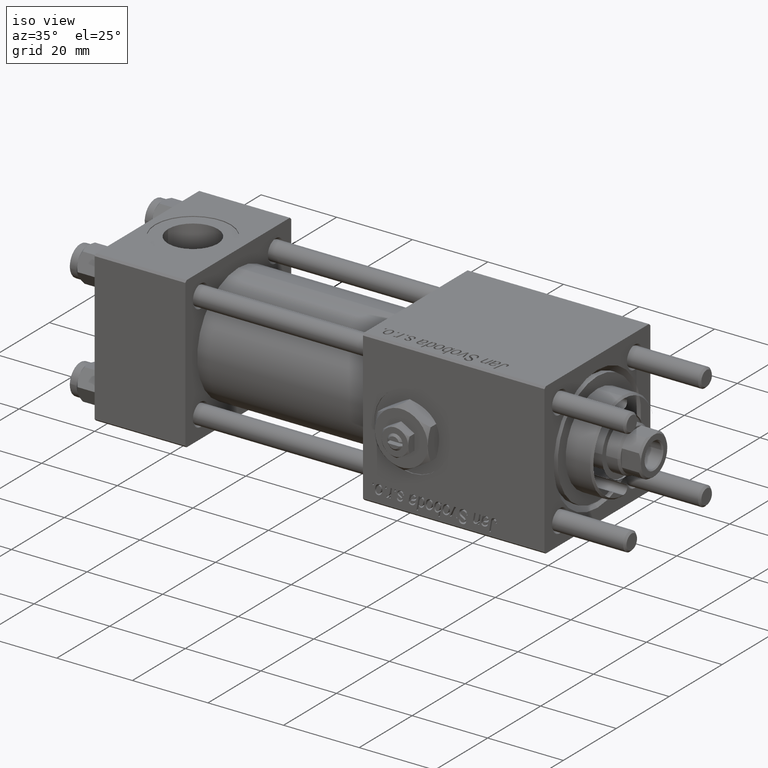
[diagram: clean part render]
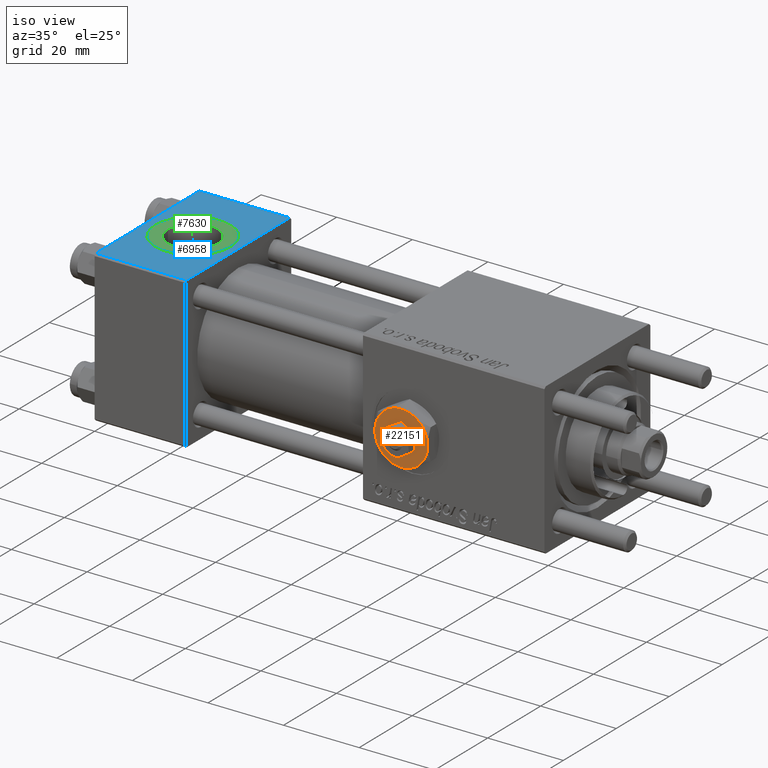
[diagram: same view with three faces highlighted in distinct colors, each labeled with its STEP entity id]
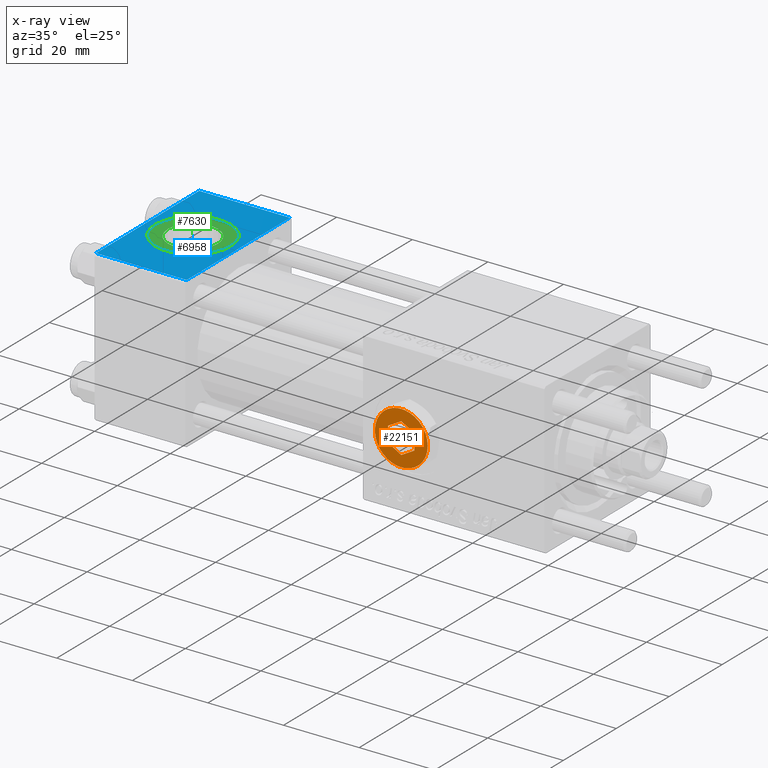
[diagram: x-ray of the same camera — body ghosted, the three highlighted faces saturated]
A machine part, iso view with three faces highlighted in distinct colors.
The next image is the same camera in x-ray (body ghosted, the three faces saturated) — at least one of them is partly hidden behind the body in this view.
Their STEP definitions:

[orange] entity #22151 — the highlighted planar face has unit normal (0, -1, -0).
#766 = EDGE_CURVE ( 'NONE', #21159, #26803, #58246, .T. ) ;
#2853 = AXIS2_PLACEMENT_3D ( 'NONE', #6384, #24747, #42833 ) ;
#2969 = DIRECTION ( 'NONE',  ( 0.000000000000000000, 0.000000000000000000, 1.000000000000000000 ) ) ;
#3451 = VERTEX_POINT ( 'NONE', #27362 ) ;
#4093 = AXIS2_PLACEMENT_3D ( 'NONE', #43582, #2969, #21047 ) ;
#4804 = DIRECTION ( 'NONE',  ( 0.000000000000000000, 0.000000000000000000, 1.000000000000000000 ) ) ;
#5532 = DIRECTION ( 'NONE',  ( -3.219245568722483357E-16, 1.000000000000000000, 0.000000000000000000 ) ) ;
#6185 = AXIS2_PLACEMENT_3D ( 'NONE', #47670, #38770, #42924 ) ;
#6325 = ORIENTED_EDGE ( 'NONE', *, *, #55294, .F. ) ;
#6334 = VECTOR ( 'NONE', #6650, 1000.000000000000114 ) ;
#6384 = CARTESIAN_POINT ( 'NONE',  ( 0.000000000000000000, 0.000000000000000000, 4.299999999999999822 ) ) ;
#6650 = DIRECTION ( 'NONE',  ( 0.8660254037844388186, 0.4999999999999996669, 0.000000000000000000 ) ) ;
#7170 = DIRECTION ( 'NONE',  ( 1.000000000000000000, 0.000000000000000000, 0.000000000000000000 ) ) ;
#9351 = VERTEX_POINT ( 'NONE', #58067 ) ;
#9981 = LINE ( 'NONE', #28060, #11613 ) ;
#10314 = EDGE_CURVE ( 'NONE', #49031, #38662, #26712, .T. ) ;
#10663 = PLANE ( 'NONE',  #56759 ) ;
#10997 = EDGE_CURVE ( 'NONE', #12387, #15338, #11982, .T. ) ;
#11613 = VECTOR ( 'NONE', #5532, 1000.000000000000000 ) ;
#11982 = LINE ( 'NONE', #38089, #6334 ) ;
#12133 = ORIENTED_EDGE ( 'NONE', *, *, #25479, .T. ) ;
#12387 = VERTEX_POINT ( 'NONE', #46239 ) ;
#13526 = CARTESIAN_POINT ( 'NONE',  ( 3.500000000000000444, 6.062177826491073063, 4.299999999999999822 ) ) ;
#13588 = CARTESIAN_POINT ( 'NONE',  ( -3.499999999999999112, 2.020725942163690725, 4.299999999999999822 ) ) ;
#15338 = VERTEX_POINT ( 'NONE', #31696 ) ;
#15402 = CARTESIAN_POINT ( 'NONE',  ( -3.500000000000000888, 6.062177826491073063, 4.299999999999999822 ) ) ;
#16216 = ORIENTED_EDGE ( 'NONE', *, *, #41795, .T. ) ;
#16652 = ORIENTED_EDGE ( 'NONE', *, *, #22839, .F. ) ;
#16936 = ORIENTED_EDGE ( 'NONE', *, *, #10997, .F. ) ;
#17998 = CIRCLE ( 'NONE', #51121, 7.000000000000001776 ) ;
#18026 = CARTESIAN_POINT ( 'NONE',  ( 0.000000000000000000, 0.000000000000000000, 4.299999999999999822 ) ) ;
#19728 = CARTESIAN_POINT ( 'NONE',  ( 6.999999999999994671, 3.004629197474313724E-15, 4.299999999999999822 ) ) ;
#19748 = AXIS2_PLACEMENT_3D ( 'NONE', #40976, #4804, #55196 ) ;
#20059 = EDGE_CURVE ( 'NONE', #45292, #58417, #52879, .T. ) ;
#20458 = EDGE_CURVE ( 'NONE', #3451, #38843, #40265, .T. ) ;
#21011 = AXIS2_PLACEMENT_3D ( 'NONE', #18026, #39958, #35514 ) ;
#21047 = DIRECTION ( 'NONE',  ( 1.000000000000000000, 0.000000000000000000, 0.000000000000000000 ) ) ;
#21159 = VERTEX_POINT ( 'NONE', #15402 ) ;
#22151 = ADVANCED_FACE ( 'NONE', ( #29315, #47409 ), #10663, .T. ) ;
#22468 = DIRECTION ( 'NONE',  ( 1.073081856240828196E-16, -1.000000000000000000, 0.000000000000000000 ) ) ;
#22839 = EDGE_CURVE ( 'NONE', #38843, #12387, #53477, .T. ) ;
#23878 = CARTESIAN_POINT ( 'NONE',  ( -7.000000000000001776, -2.253471898105739040E-15, 4.299999999999999822 ) ) ;
#24747 = DIRECTION ( 'NONE',  ( 0.000000000000000000, 0.000000000000000000, 1.000000000000000000 ) ) ;
#25479 = EDGE_CURVE ( 'NONE', #26803, #9351, #28423, .T. ) ;
#26712 = LINE ( 'NONE', #39182, #38539 ) ;
#26803 = VERTEX_POINT ( 'NONE', #23878 ) ;
#27362 = CARTESIAN_POINT ( 'NONE',  ( -3.499999999999999112, 2.020725942163690725, 4.299999999999999822 ) ) ;
#27375 = EDGE_CURVE ( 'NONE', #38662, #3451, #35637, .T. ) ;
#28060 = CARTESIAN_POINT ( 'NONE',  ( 3.499999999999999556, -2.020725942163690281, 4.299999999999999822 ) ) ;
#28423 = CIRCLE ( 'NONE', #2853, 7.000000000000001776 ) ;
#29315 = FACE_OUTER_BOUND ( 'NONE', #30865, .T. ) ;
#29697 = CARTESIAN_POINT ( 'NONE',  ( 0.000000000000000000, 0.000000000000000000, 4.299999999999999822 ) ) ;
#30865 = EDGE_LOOP ( 'NONE', ( #47056, #16216, #46959, #55118, #12133, #42029 ) ) ;
#31696 = CARTESIAN_POINT ( 'NONE',  ( 3.500000000000000000, -2.020725942163690281, 4.299999999999999822 ) ) ;
#31727 = ORIENTED_EDGE ( 'NONE', *, *, #10314, .F. ) ;
#32102 = VECTOR ( 'NONE', #22468, 1000.000000000000000 ) ;
#32618 = CARTESIAN_POINT ( 'NONE',  ( 3.499999999999998224, 2.020725942163691613, 4.299999999999999822 ) ) ;
#34720 = DIRECTION ( 'NONE',  ( -0.8660254037844387076, 0.4999999999999998335, 0.000000000000000000 ) ) ;
#34798 = DIRECTION ( 'NONE',  ( 0.8660254037844385966, -0.4999999999999998890, 0.000000000000000000 ) ) ;
#35514 = DIRECTION ( 'NONE',  ( 1.000000000000000000, 0.000000000000000000, 0.000000000000000000 ) ) ;
#35637 = LINE ( 'NONE', #39194, #57874 ) ;
#35932 = VECTOR ( 'NONE', #34798, 1000.000000000000227 ) ;
#36616 = EDGE_CURVE ( 'NONE', #9351, #45292, #51396, .T. ) ;
#38089 = CARTESIAN_POINT ( 'NONE',  ( -2.443687887572056883E-16, -4.041451884327378785, 4.299999999999999822 ) ) ;
#38539 = VECTOR ( 'NONE', #34720, 1000.000000000000114 ) ;
#38662 = VERTEX_POINT ( 'NONE', #44195 ) ;
#38770 = DIRECTION ( 'NONE',  ( 0.000000000000000000, 0.000000000000000000, 1.000000000000000000 ) ) ;
#38805 = DIRECTION ( 'NONE',  ( 1.000000000000000000, 0.000000000000000000, -0.000000000000000000 ) ) ;
#38843 = VERTEX_POINT ( 'NONE', #40927 ) ;
#38995 = CARTESIAN_POINT ( 'NONE',  ( 3.500000000000000888, -6.062177826491073951, 4.299999999999999822 ) ) ;
#39182 = CARTESIAN_POINT ( 'NONE',  ( 3.499999999999998224, 2.020725942163691613, 4.299999999999999822 ) ) ;
#39194 = CARTESIAN_POINT ( 'NONE',  ( 0.000000000000000000, 4.041451884327380562, 4.299999999999999822 ) ) ;
#39958 = DIRECTION ( 'NONE',  ( 0.000000000000000000, 0.000000000000000000, 1.000000000000000000 ) ) ;
#40208 = VERTEX_POINT ( 'NONE', #13526 ) ;
#40265 = LINE ( 'NONE', #13588, #32102 ) ;
#40927 = CARTESIAN_POINT ( 'NONE',  ( -3.499999999999998668, -2.020725942163689837, 4.299999999999999822 ) ) ;
#40976 = CARTESIAN_POINT ( 'NONE',  ( 0.000000000000000000, 0.000000000000000000, 4.299999999999999822 ) ) ;
#41795 = EDGE_CURVE ( 'NONE', #58417, #40208, #17998, .T. ) ;
#42029 = ORIENTED_EDGE ( 'NONE', *, *, #36616, .T. ) ;
#42260 = EDGE_LOOP ( 'NONE', ( #43544, #31727, #6325, #16936, #16652, #57149 ) ) ;
#42833 = DIRECTION ( 'NONE',  ( 1.000000000000000000, 0.000000000000000000, 0.000000000000000000 ) ) ;
#42924 = DIRECTION ( 'NONE',  ( 1.000000000000000000, 0.000000000000000000, 0.000000000000000000 ) ) ;
#43544 = ORIENTED_EDGE ( 'NONE', *, *, #27375, .F. ) ;
#43582 = CARTESIAN_POINT ( 'NONE',  ( 0.000000000000000000, 0.000000000000000000, 4.299999999999999822 ) ) ;
#43935 = DIRECTION ( 'NONE',  ( -0.8660254037844385966, -0.4999999999999998890, 0.000000000000000000 ) ) ;
#44195 = CARTESIAN_POINT ( 'NONE',  ( 0.000000000000000000, 4.041451884327380562, 4.299999999999999822 ) ) ;
#45292 = VERTEX_POINT ( 'NONE', #38995 ) ;
#46239 = CARTESIAN_POINT ( 'NONE',  ( -2.443687887572056883E-16, -4.041451884327378785, 4.299999999999999822 ) ) ;
#46555 = CARTESIAN_POINT ( 'NONE',  ( 0.000000000000000000, 0.000000000000000000, 4.299999999999999822 ) ) ;
#46603 = CIRCLE ( 'NONE', #21011, 7.000000000000001776 ) ;
#46959 = ORIENTED_EDGE ( 'NONE', *, *, #47657, .T. ) ;
#47056 = ORIENTED_EDGE ( 'NONE', *, *, #20059, .T. ) ;
#47409 = FACE_BOUND ( 'NONE', #42260, .T. ) ;
#47657 = EDGE_CURVE ( 'NONE', #40208, #21159, #46603, .T. ) ;
#47670 = CARTESIAN_POINT ( 'NONE',  ( 0.000000000000000000, 0.000000000000000000, 4.299999999999999822 ) ) ;
#47789 = DIRECTION ( 'NONE',  ( 0.000000000000000000, 0.000000000000000000, 1.000000000000000000 ) ) ;
#49031 = VERTEX_POINT ( 'NONE', #32618 ) ;
#51121 = AXIS2_PLACEMENT_3D ( 'NONE', #29697, #47789, #7170 ) ;
#51396 = CIRCLE ( 'NONE', #4093, 7.000000000000001776 ) ;
#52879 = CIRCLE ( 'NONE', #19748, 7.000000000000001776 ) ;
#53477 = LINE ( 'NONE', #57623, #35932 ) ;
#55118 = ORIENTED_EDGE ( 'NONE', *, *, #766, .T. ) ;
#55196 = DIRECTION ( 'NONE',  ( 1.000000000000000000, 0.000000000000000000, 0.000000000000000000 ) ) ;
#55294 = EDGE_CURVE ( 'NONE', #15338, #49031, #9981, .T. ) ;
#56585 = DIRECTION ( 'NONE',  ( 0.000000000000000000, 0.000000000000000000, 1.000000000000000000 ) ) ;
#56759 = AXIS2_PLACEMENT_3D ( 'NONE', #46555, #56585, #38805 ) ;
#57149 = ORIENTED_EDGE ( 'NONE', *, *, #20458, .F. ) ;
#57623 = CARTESIAN_POINT ( 'NONE',  ( -3.499999999999998668, -2.020725942163689837, 4.299999999999999822 ) ) ;
#57874 = VECTOR ( 'NONE', #43935, 1000.000000000000227 ) ;
#58067 = CARTESIAN_POINT ( 'NONE',  ( -3.500000000000000000, -6.062177826491073063, 4.299999999999999822 ) ) ;
#58246 = CIRCLE ( 'NONE', #6185, 7.000000000000001776 ) ;
#58417 = VERTEX_POINT ( 'NONE', #19728 ) ;

[blue] entity #6958 — the highlighted planar face has unit normal (0, 0, -1).
#191 = ORIENTED_EDGE ( 'NONE', *, *, #43503, .F. ) ;
#1709 = VERTEX_POINT ( 'NONE', #34919 ) ;
#1809 = PLANE ( 'NONE',  #51664 ) ;
#2453 = VERTEX_POINT ( 'NONE', #57828 ) ;
#3153 = LINE ( 'NONE', #31592, #26601 ) ;
#4408 = CIRCLE ( 'NONE', #17663, 9.999999999999998224 ) ;
#5975 = DIRECTION ( 'NONE',  ( 0.000000000000000000, 2.602085213965210149E-16, -1.000000000000000000 ) ) ;
#6552 = ORIENTED_EDGE ( 'NONE', *, *, #56882, .T. ) ;
#6797 = CARTESIAN_POINT ( 'NONE',  ( 24.00000000000000000, -19.49999999999999289, 19.99999999999998934 ) ) ;
#6958 = ADVANCED_FACE ( 'NONE', ( #51046, #46600 ), #1809, .F. ) ;
#7367 = EDGE_CURVE ( 'NONE', #2453, #32653, #49151, .T. ) ;
#7674 = DIRECTION ( 'NONE',  ( 1.000000000000000000, 0.000000000000000000, 0.000000000000000000 ) ) ;
#8435 = ORIENTED_EDGE ( 'NONE', *, *, #9909, .F. ) ;
#8443 = DIRECTION ( 'NONE',  ( 0.000000000000000000, -1.000000000000000000, -2.602085213965210149E-16 ) ) ;
#9909 = EDGE_CURVE ( 'NONE', #14653, #14226, #4408, .T. ) ;
#11364 = EDGE_CURVE ( 'NONE', #14226, #14653, #20584, .T. ) ;
#11399 = VECTOR ( 'NONE', #8443, 1000.000000000000000 ) ;
#12868 = CARTESIAN_POINT ( 'NONE',  ( 0.000000000000000000, -19.49999999999999289, 19.99999999999998934 ) ) ;
#14226 = VERTEX_POINT ( 'NONE', #40119 ) ;
#14653 = VERTEX_POINT ( 'NONE', #58313 ) ;
#15538 = CARTESIAN_POINT ( 'NONE',  ( 12.00000000000000000, 1.540743955509788682E-30, 19.99999999999999645 ) ) ;
#16716 = DIRECTION ( 'NONE',  ( 1.000000000000000000, 0.000000000000000000, 0.000000000000000000 ) ) ;
#16873 = LINE ( 'NONE', #6797, #48616 ) ;
#17663 = AXIS2_PLACEMENT_3D ( 'NONE', #15538, #38954, #16716 ) ;
#19817 = ORIENTED_EDGE ( 'NONE', *, *, #11364, .F. ) ;
#20584 = CIRCLE ( 'NONE', #41443, 9.999999999999998224 ) ;
#24336 = CARTESIAN_POINT ( 'NONE',  ( 24.00000000000000000, 20.00000000000000000, 20.00000000000000000 ) ) ;
#25821 = EDGE_CURVE ( 'NONE', #1709, #2453, #3153, .T. ) ;
#25977 = DIRECTION ( 'NONE',  ( -1.000000000000000000, 0.000000000000000000, 0.000000000000000000 ) ) ;
#26601 = VECTOR ( 'NONE', #25977, 1000.000000000000000 ) ;
#26907 = CARTESIAN_POINT ( 'NONE',  ( 0.000000000000000000, 20.00000000000000000, 20.00000000000000000 ) ) ;
#27087 = VECTOR ( 'NONE', #40840, 1000.000000000000000 ) ;
#27752 = ORIENTED_EDGE ( 'NONE', *, *, #25821, .T. ) ;
#28471 = CARTESIAN_POINT ( 'NONE',  ( 12.00000000000000000, 1.540743955509788682E-30, 19.99999999999999645 ) ) ;
#30963 = CARTESIAN_POINT ( 'NONE',  ( 24.00000000000000000, 20.00000000000000000, 20.00000000000000000 ) ) ;
#31587 = ORIENTED_EDGE ( 'NONE', *, *, #7367, .T. ) ;
#31592 = CARTESIAN_POINT ( 'NONE',  ( 0.000000000000000000, 19.50000000000000000, 20.00000000000000000 ) ) ;
#32653 = VERTEX_POINT ( 'NONE', #12868 ) ;
#34919 = CARTESIAN_POINT ( 'NONE',  ( 24.00000000000000000, 19.50000000000000000, 20.00000000000000000 ) ) ;
#37386 = DIRECTION ( 'NONE',  ( 1.000000000000000000, 0.000000000000000000, 0.000000000000000000 ) ) ;
#38592 = EDGE_LOOP ( 'NONE', ( #19817, #8435 ) ) ;
#38954 = DIRECTION ( 'NONE',  ( 0.000000000000000000, 0.000000000000000000, 1.000000000000000000 ) ) ;
#39869 = CARTESIAN_POINT ( 'NONE',  ( 24.00000000000000000, -19.49999999999999289, 19.99999999999998934 ) ) ;
#40119 = CARTESIAN_POINT ( 'NONE',  ( 22.00000000000000000, 1.540743955509788682E-30, 19.99999999999999645 ) ) ;
#40840 = DIRECTION ( 'NONE',  ( 0.000000000000000000, -1.000000000000000000, -2.602085213965210149E-16 ) ) ;
#41443 = AXIS2_PLACEMENT_3D ( 'NONE', #28471, #45695, #37386 ) ;
#42425 = DIRECTION ( 'NONE',  ( 0.000000000000000000, 1.000000000000000000, 2.602085213965210149E-16 ) ) ;
#43503 = EDGE_CURVE ( 'NONE', #1709, #43559, #48469, .T. ) ;
#43559 = VERTEX_POINT ( 'NONE', #39869 ) ;
#45695 = DIRECTION ( 'NONE',  ( 0.000000000000000000, 0.000000000000000000, 1.000000000000000000 ) ) ;
#46600 = FACE_OUTER_BOUND ( 'NONE', #47706, .T. ) ;
#47706 = EDGE_LOOP ( 'NONE', ( #31587, #6552, #191, #27752 ) ) ;
#48469 = LINE ( 'NONE', #30963, #11399 ) ;
#48616 = VECTOR ( 'NONE', #7674, 1000.000000000000000 ) ;
#49151 = LINE ( 'NONE', #26907, #27087 ) ;
#51046 = FACE_BOUND ( 'NONE', #38592, .T. ) ;
#51664 = AXIS2_PLACEMENT_3D ( 'NONE', #24336, #5975, #42425 ) ;
#56882 = EDGE_CURVE ( 'NONE', #32653, #43559, #16873, .T. ) ;
#57828 = CARTESIAN_POINT ( 'NONE',  ( 0.000000000000000000, 19.50000000000000000, 20.00000000000000000 ) ) ;
#58313 = CARTESIAN_POINT ( 'NONE',  ( 2.000000000000003553, 1.224646799147354440E-15, 19.99999999999999645 ) ) ;

[green] entity #7630 — the highlighted planar face has unit normal (0, 0, 1).
#1128 = CIRCLE ( 'NONE', #21939, 6.579999999999999183 ) ;
#4365 = AXIS2_PLACEMENT_3D ( 'NONE', #48707, #26165, #44257 ) ;
#5717 = CARTESIAN_POINT ( 'NONE',  ( 12.00000000000000000, 1.540743955509788682E-30, 19.79999999999999716 ) ) ;
#7438 = CARTESIAN_POINT ( 'NONE',  ( 18.57999999999999829, 1.540743955509788682E-30, 19.79999999999999716 ) ) ;
#7630 = ADVANCED_FACE ( 'NONE', ( #34478, #30023 ), #12548, .T. ) ;
#9141 = ORIENTED_EDGE ( 'NONE', *, *, #23045, .T. ) ;
#11603 = CIRCLE ( 'NONE', #12556, 6.579999999999999183 ) ;
#12548 = PLANE ( 'NONE',  #4365 ) ;
#12556 = AXIS2_PLACEMENT_3D ( 'NONE', #19697, #33321, #51418 ) ;
#16901 = CARTESIAN_POINT ( 'NONE',  ( 22.00000000000000000, 1.540743955509788682E-30, 19.79999999999999716 ) ) ;
#16998 = CIRCLE ( 'NONE', #57751, 9.999999999999998224 ) ;
#19697 = CARTESIAN_POINT ( 'NONE',  ( 12.00000000000000000, 1.540743955509788682E-30, 19.79999999999999716 ) ) ;
#20715 = CARTESIAN_POINT ( 'NONE',  ( 12.00000000000000000, 1.540743955509788682E-30, 19.79999999999999716 ) ) ;
#21939 = AXIS2_PLACEMENT_3D ( 'NONE', #5717, #55235, #54935 ) ;
#23045 = EDGE_CURVE ( 'NONE', #35315, #44760, #16998, .T. ) ;
#23277 = CARTESIAN_POINT ( 'NONE',  ( 2.000000000000003553, 1.224646799147354440E-15, 19.79999999999999716 ) ) ;
#23312 = ORIENTED_EDGE ( 'NONE', *, *, #32791, .F. ) ;
#23873 = VERTEX_POINT ( 'NONE', #46850 ) ;
#26165 = DIRECTION ( 'NONE',  ( 0.000000000000000000, 0.000000000000000000, 1.000000000000000000 ) ) ;
#30023 = FACE_OUTER_BOUND ( 'NONE', #47468, .T. ) ;
#32417 = ORIENTED_EDGE ( 'NONE', *, *, #36643, .T. ) ;
#32791 = EDGE_CURVE ( 'NONE', #37943, #23873, #1128, .T. ) ;
#33321 = DIRECTION ( 'NONE',  ( 0.000000000000000000, 0.000000000000000000, 1.000000000000000000 ) ) ;
#34478 = FACE_BOUND ( 'NONE', #45400, .T. ) ;
#35315 = VERTEX_POINT ( 'NONE', #23277 ) ;
#35542 = EDGE_CURVE ( 'NONE', #23873, #37943, #11603, .T. ) ;
#36643 = EDGE_CURVE ( 'NONE', #44760, #35315, #52362, .T. ) ;
#37941 = DIRECTION ( 'NONE',  ( 1.000000000000000000, 0.000000000000000000, 0.000000000000000000 ) ) ;
#37943 = VERTEX_POINT ( 'NONE', #7438 ) ;
#38513 = DIRECTION ( 'NONE',  ( 0.000000000000000000, 0.000000000000000000, 1.000000000000000000 ) ) ;
#39081 = AXIS2_PLACEMENT_3D ( 'NONE', #48630, #39731, #53365 ) ;
#39731 = DIRECTION ( 'NONE',  ( 0.000000000000000000, 0.000000000000000000, 1.000000000000000000 ) ) ;
#43998 = ORIENTED_EDGE ( 'NONE', *, *, #35542, .F. ) ;
#44257 = DIRECTION ( 'NONE',  ( 1.000000000000000000, 0.000000000000000000, -0.000000000000000000 ) ) ;
#44760 = VERTEX_POINT ( 'NONE', #16901 ) ;
#45400 = EDGE_LOOP ( 'NONE', ( #23312, #43998 ) ) ;
#46850 = CARTESIAN_POINT ( 'NONE',  ( 5.420000000000000817, 8.058175938389596335E-16, 19.79999999999999716 ) ) ;
#47468 = EDGE_LOOP ( 'NONE', ( #32417, #9141 ) ) ;
#48630 = CARTESIAN_POINT ( 'NONE',  ( 12.00000000000000000, 1.540743955509788682E-30, 19.79999999999999716 ) ) ;
#48707 = CARTESIAN_POINT ( 'NONE',  ( 12.00000000000000000, 1.540743955509788682E-30, 19.79999999999999716 ) ) ;
#51418 = DIRECTION ( 'NONE',  ( 1.000000000000000000, 0.000000000000000000, 0.000000000000000000 ) ) ;
#52362 = CIRCLE ( 'NONE', #39081, 9.999999999999998224 ) ;
#53365 = DIRECTION ( 'NONE',  ( 1.000000000000000000, 0.000000000000000000, 0.000000000000000000 ) ) ;
#54935 = DIRECTION ( 'NONE',  ( 1.000000000000000000, 0.000000000000000000, 0.000000000000000000 ) ) ;
#55235 = DIRECTION ( 'NONE',  ( 0.000000000000000000, 0.000000000000000000, 1.000000000000000000 ) ) ;
#57751 = AXIS2_PLACEMENT_3D ( 'NONE', #20715, #38513, #37941 ) ;